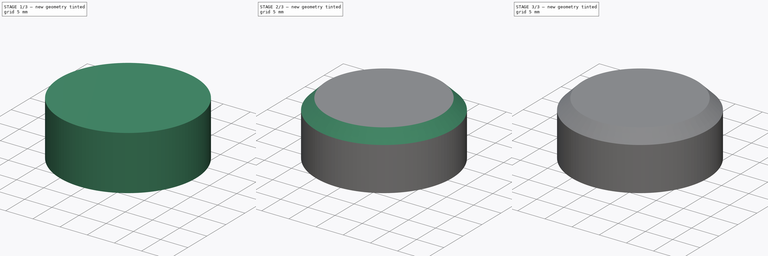
[diagram: build sequence overview — one tinted view per stage of 3, left to right]
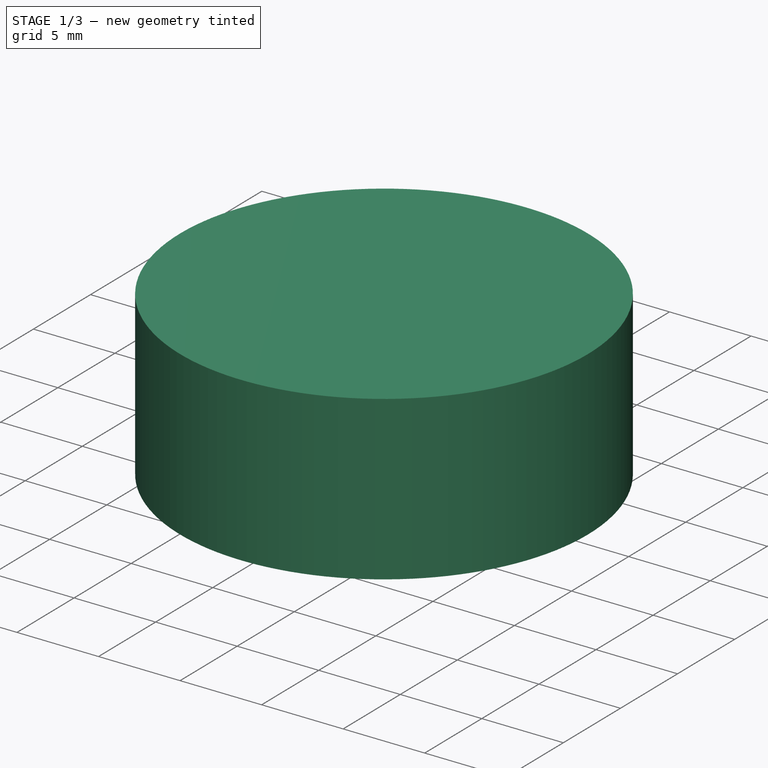
[diagram: stage 1 of 3 — iso view after this stage's code; geometry added in this stage tinted green]
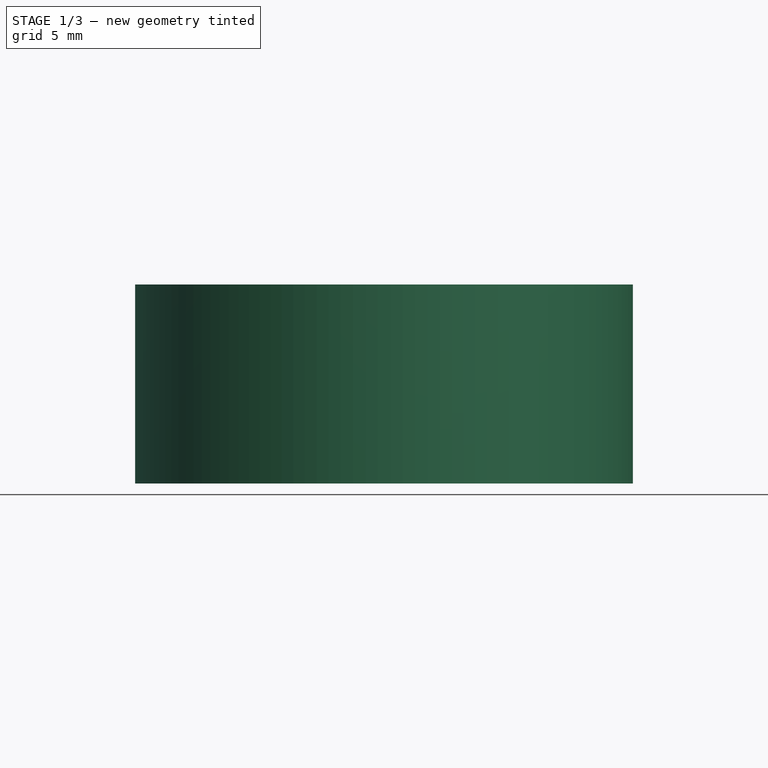
[diagram: stage 1 of 3 — front view after this stage's code; geometry added in this stage tinted green]
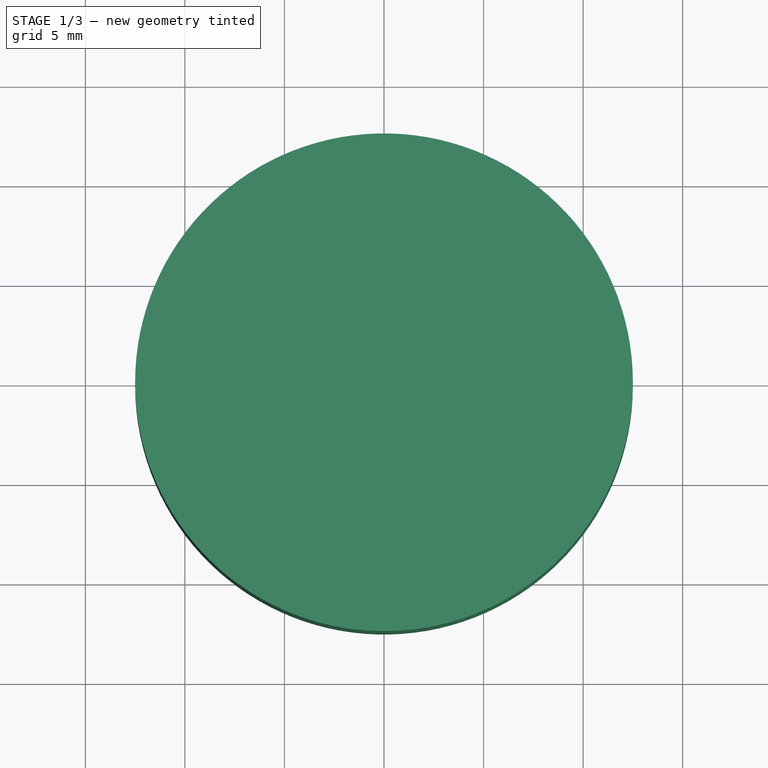
[diagram: stage 1 of 3 — top view after this stage's code; geometry added in this stage tinted green]
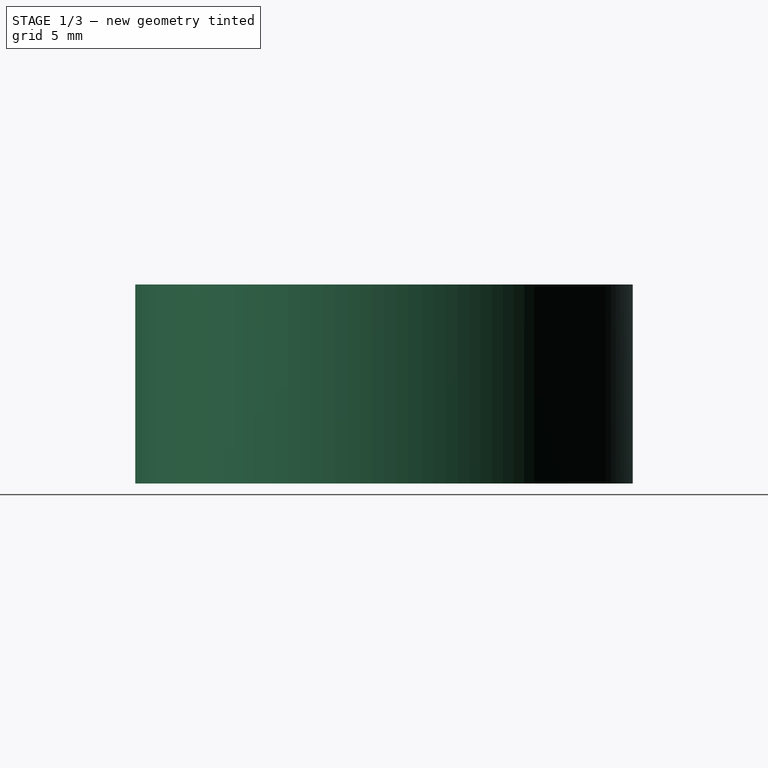
[diagram: stage 1 of 3 — right view after this stage's code; geometry added in this stage tinted green]
FCSTD DOCUMENT  (FreeCAD 1.0R39285 (Git))
Label: knob
License: All rights reserved
LicenseURL: https://en.wikipedia.org/wiki/All_rights_reserved
objects: Sketcher::SketchObject×3, PartDesign::Pocket×2, PartDesign::Chamfer×2, PartDesign::Pad×1, PartDesign::Body×1
note: 22 computed .brp shape members not serialized (recipe doc carries the construction recipe); baked Part::Feature solids carry a one-line shape summary decoded from their .brp

FEATURE [Sketcher::SketchObject] Sketch
  ArcFitTolerance = 1e-06
  AttachmentSupport = -> [XY_Plane]
  FullyConstrained = true
  MakeInternals = false
  MapMode = 5
  sketch-geometry (1):
    g0: Circle CenterX=0 CenterY=0 CenterZ=0 NormalX=0 NormalY=0 NormalZ=1 AngleXU=0 Radius=12.5
  constraints (2):
    c: Coincident(g0,g-1)
    c: Diameter(g0) = 25
FEATURE [Sketcher::SketchObject] Sketch001
  ArcFitTolerance = 1e-06
  AttachmentSupport = -> [XY_Plane]
  FullyConstrained = true
  MakeInternals = false
  MapMode = 5
  sketch-geometry (3):
    g0: ArcOfCircle CenterX=0 CenterY=0 CenterZ=0 NormalX=0 NormalY=0 NormalZ=1 AngleXU=0 Radius=3.1 StartAngle=2.67302 EndAngle=6.75176
    g1: LineSegment StartX=-2.76586 StartY=1.4 StartZ=0 EndX=2.76586 EndY=1.4 EndZ=0
    g2: GeomPoint X=0 Y=-3.1 Z=0
  constraints (8):
    c: Coincident(g0,g-1)
    c: Radius(g0) = 3.1
    c: Horizontal(g0,g0)
    c: Coincident(g1,g0)
    c: Coincident(g1,g0)
    c: PointOnObject(g2,g0)
    c: PointOnObject(g2,g-2)
    c: Distance(g2,g1) = 4.5
FEATURE [PartDesign::Pad] Pad
  Direction = (0,0,1)
  Length = 10
  Length2 = 10
  Profile = -> Sketch
  ReferenceAxis = -> Sketch [N_Axis]
  Refine = true
  Suppressed = false
  Type = 0
FEATURE [PartDesign::Pocket] Pocket
  BaseFeature = -> Pad
  Direction = (0,0,-1)
  Length = 8
  Length2 = 5
  Profile = -> Sketch001
  ReferenceAxis = -> Sketch001 [N_Axis]
  Refine = true
  Reversed = true
  Suppressed = false
  Type = 0
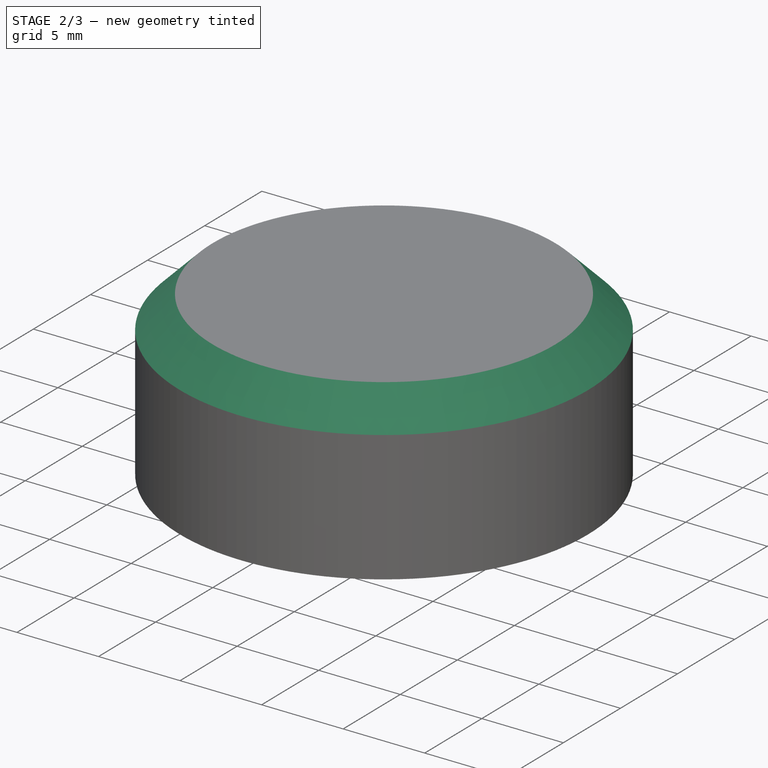
[diagram: stage 2 of 3 — iso view after this stage's code; geometry added in this stage tinted green]
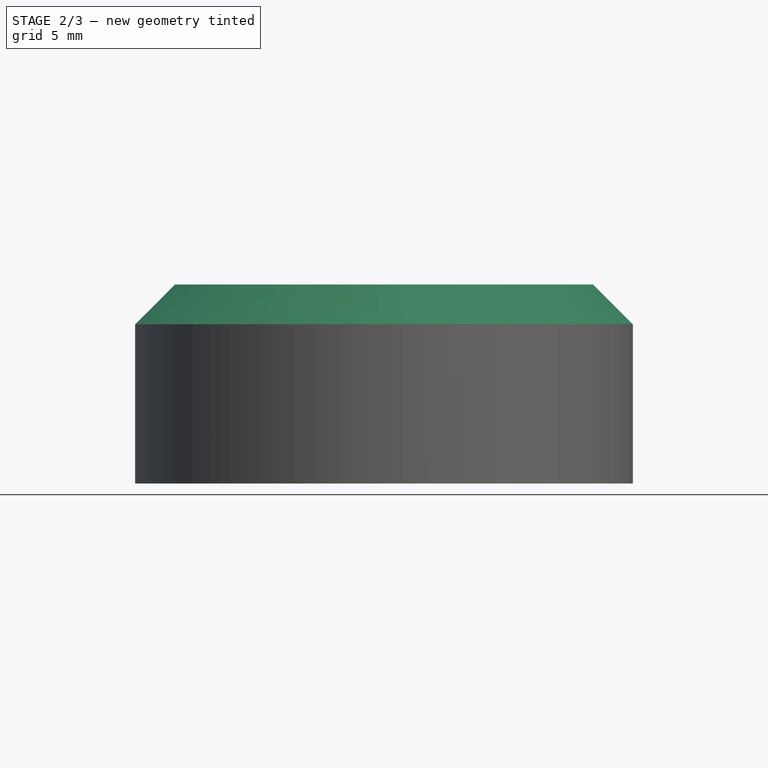
[diagram: stage 2 of 3 — front view after this stage's code; geometry added in this stage tinted green]
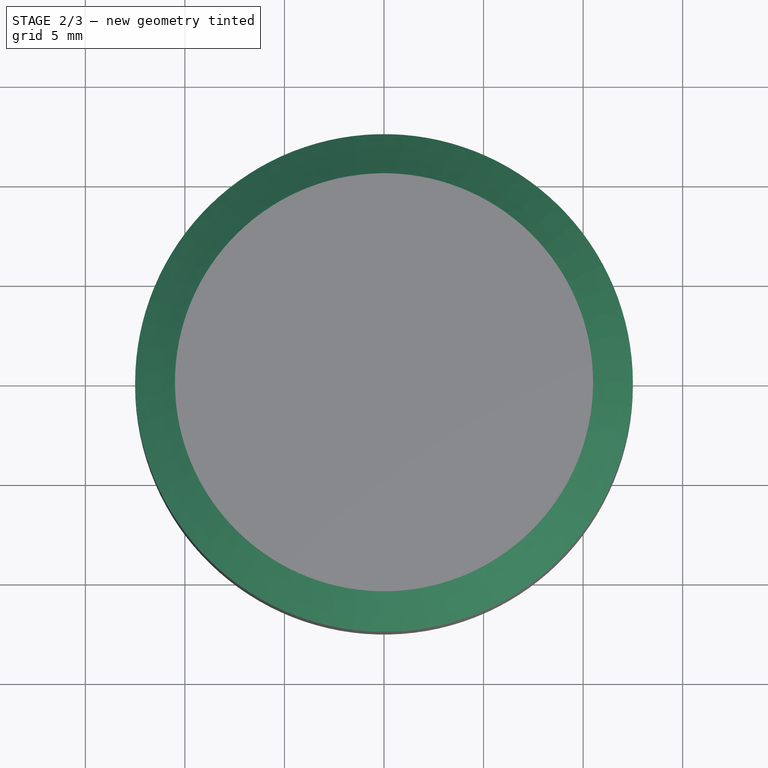
[diagram: stage 2 of 3 — top view after this stage's code; geometry added in this stage tinted green]
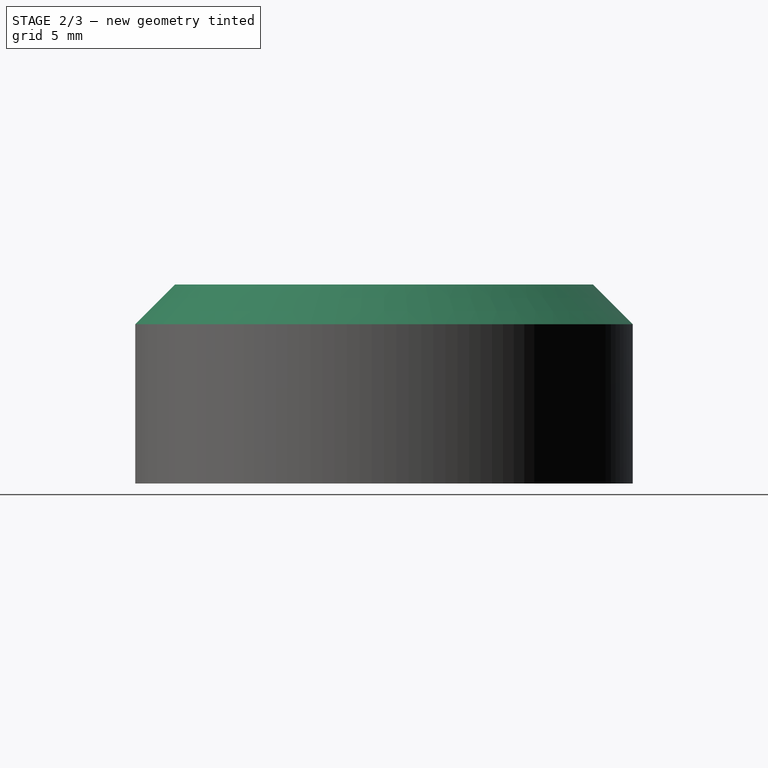
[diagram: stage 2 of 3 — right view after this stage's code; geometry added in this stage tinted green]
FEATURE [PartDesign::Chamfer] Chamfer
  Angle = 45
  Base = -> Pocket [Edge3]
  BaseFeature = -> Pocket
  ChamferType = 0
  FlipDirection = false
  Refine = true
  Size = 2
  Size2 = 1
  SupportTransform = false
  Suppressed = false
  UseAllEdges = false
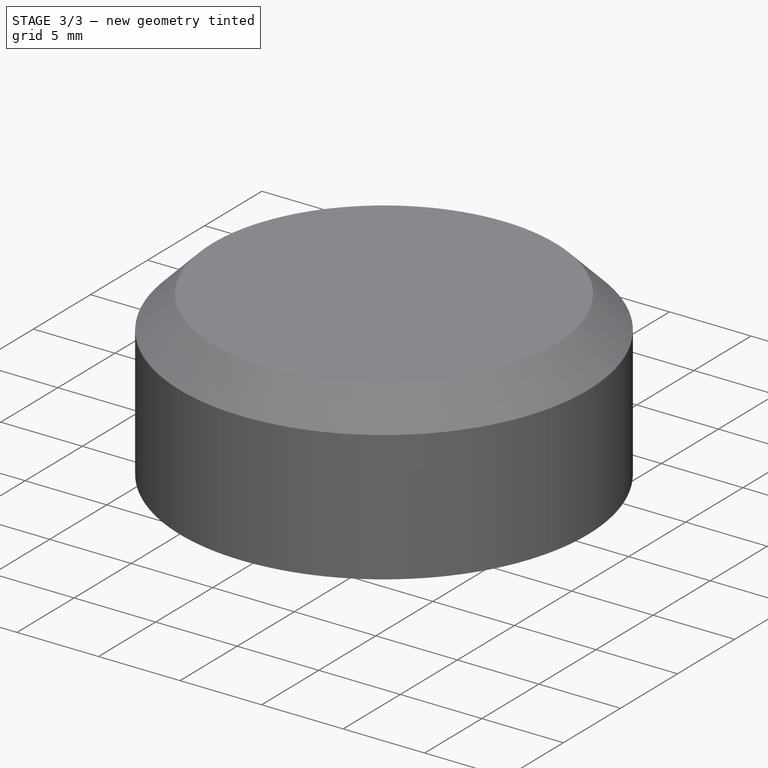
[diagram: stage 3 of 3 — iso view after this stage's code; geometry added in this stage tinted green]
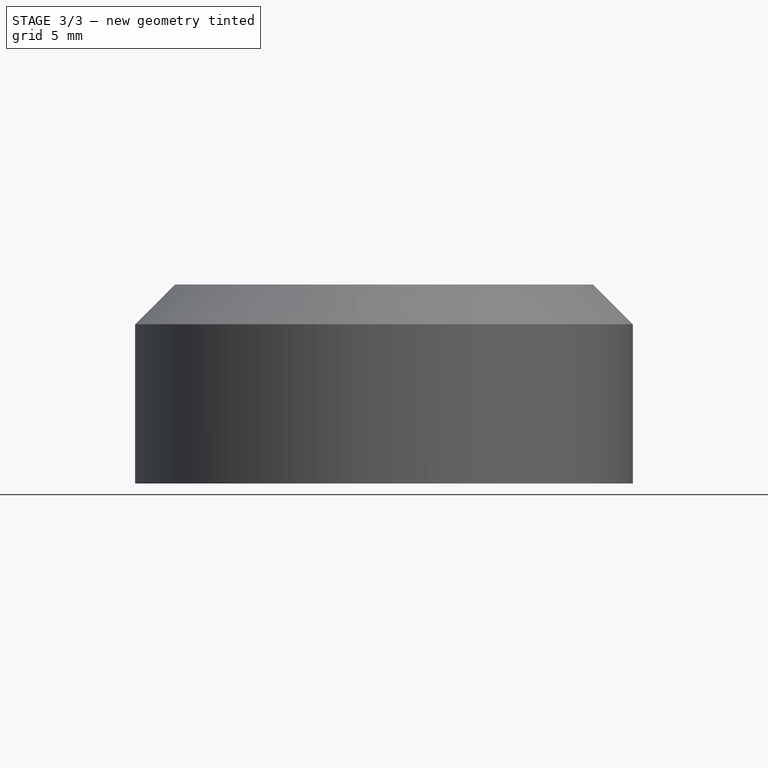
[diagram: stage 3 of 3 — front view after this stage's code; geometry added in this stage tinted green]
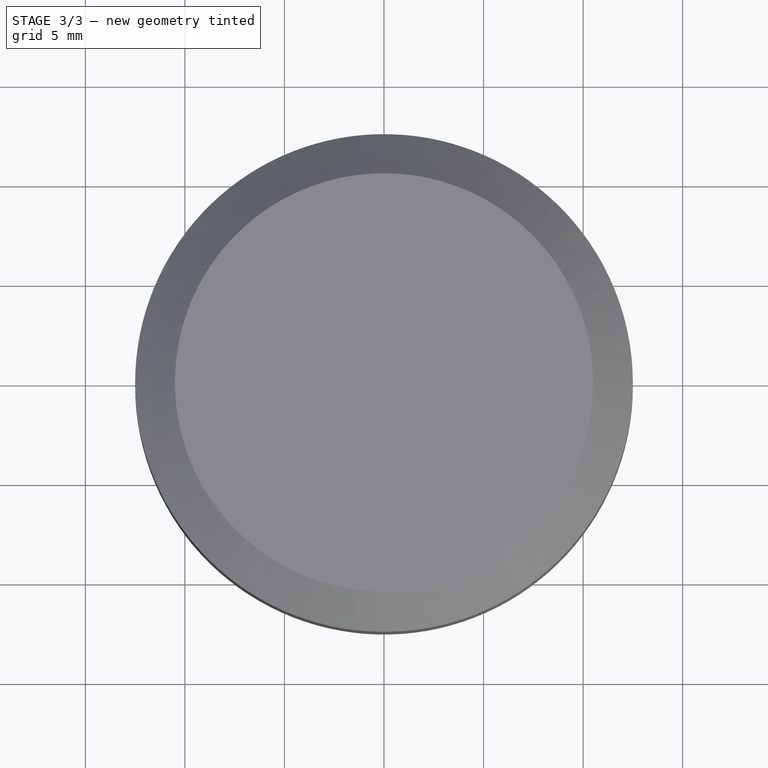
[diagram: stage 3 of 3 — top view after this stage's code; geometry added in this stage tinted green]
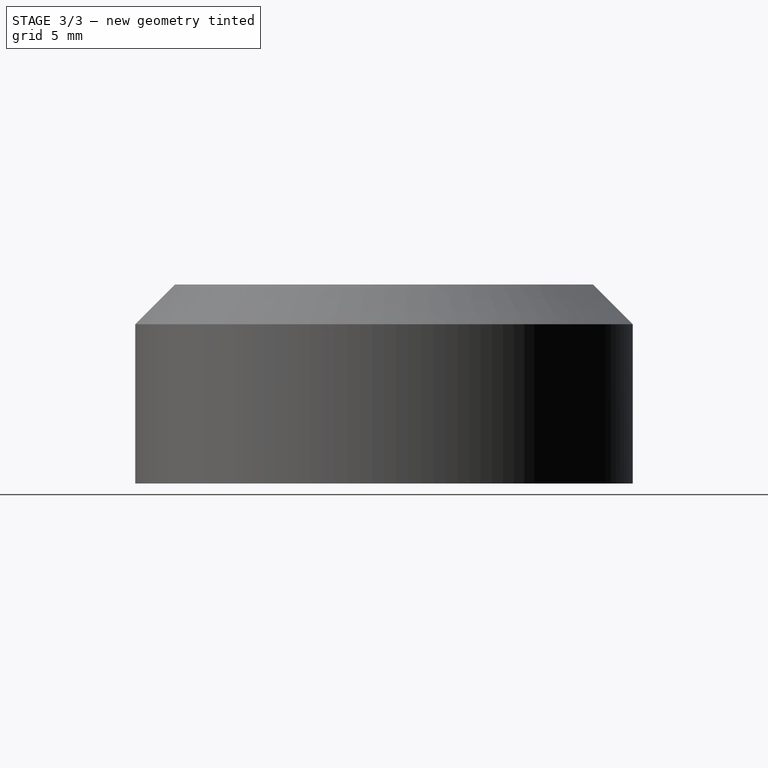
[diagram: stage 3 of 3 — right view after this stage's code; geometry added in this stage tinted green]
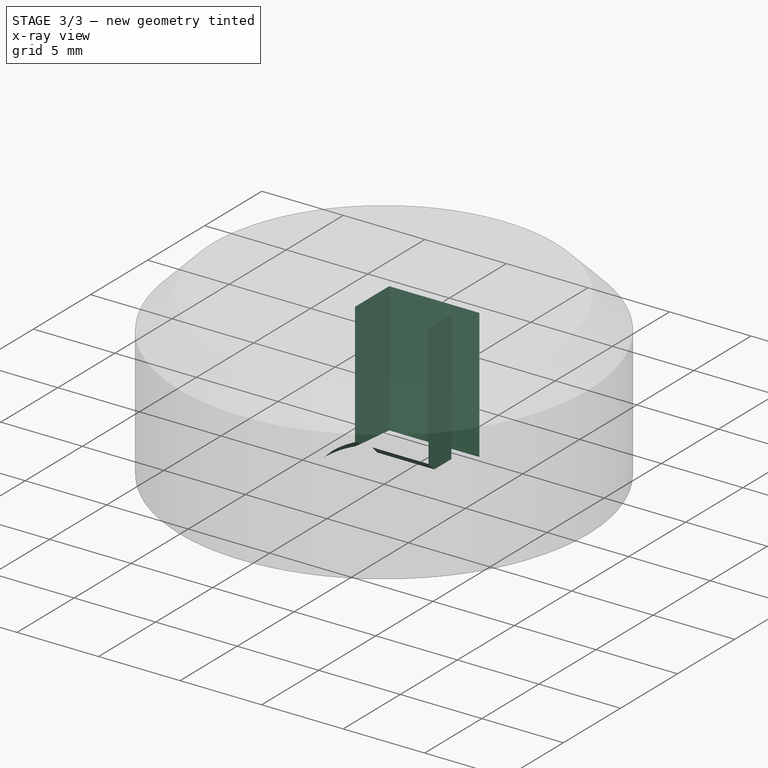
[diagram: stage 3 of 3 — x-ray composite at the iso view; earlier geometry ghosted, this stage's added geometry solid]
FEATURE [Sketcher::SketchObject] Sketch002
  ArcFitTolerance = 1e-06
  AttachmentSupport = -> [XY_Plane]
  FullyConstrained = true
  MakeInternals = false
  MapMode = 5
  expr: Constraints[28] = 4.5 - 3.1
  sketch-geometry (14):
    g0: LineSegment StartX=1.75 StartY=1.4 StartZ=0 EndX=1.75 EndY=3.4 EndZ=0
    g1: LineSegment StartX=1.75 StartY=3.4 StartZ=0 EndX=-1.75 EndY=3.4 EndZ=0
    g2: LineSegment StartX=-1.75 StartY=3.4 StartZ=0 EndX=-1.75 EndY=1.4 EndZ=0
    g3: LineSegment [constr] StartX=-1.75 StartY=1.4 StartZ=0 EndX=1.75 EndY=1.4 EndZ=0
    g4: GeomPoint [constr] X=0 Y=2.4 Z=0
    g5: LineSegment StartX=2.76586 StartY=1.4 StartZ=0 EndX=2.76586 EndY=4.4 EndZ=0
    g6: LineSegment StartX=2.76586 StartY=4.4 StartZ=0 EndX=-2.76586 EndY=4.4 EndZ=0
    g7: LineSegment StartX=-2.76586 StartY=4.4 StartZ=0 EndX=-2.76586 EndY=1.4 EndZ=0
    g8: LineSegment [constr] StartX=-2.76586 StartY=1.4 StartZ=0 EndX=2.76586 EndY=1.4 EndZ=0
    g9: GeomPoint [constr] X=0 Y=2.9 Z=0
    g10: LineSegment StartX=-1.75 StartY=1.4 StartZ=0 EndX=-2.76586 EndY=1.4 EndZ=0
    g11: LineSegment StartX=1.75 StartY=1.4 StartZ=0 EndX=2.76586 EndY=1.4 EndZ=0
    g12: GeomPoint X=0 Y=0 Z=0
    g13: LineSegment [constr] StartX=0 StartY=0 StartZ=0 EndX=-2.76586 EndY=1.4 EndZ=0
  constraints (33):
    c: Coincident(g0,g1)
    c: Coincident(g1,g2)
    c: Coincident(g2,g3)
    c: Coincident(g3,g0)
    c: Vertical(g0)
    c: Vertical(g2)
    c: Horizontal(g1)
    c: Horizontal(g3)
    c: Symmetric(g2,g0,g4)
    c: PointOnObject(g4,g-2)
    c: Coincident(g5,g6)
    c: Coincident(g6,g7)
    c: Coincident(g7,g8)
    c: Coincident(g8,g5)
    c: Vertical(g5)
    c: Vertical(g7)
    c: Horizontal(g6)
    c: Horizontal(g8)
    c: Symmetric(g7,g5,g9)
    c: PointOnObject(g9,g-2)
    c: PointOnObject(g2,g8)
    c: Coincident(g10,g2)
    c: Coincident(g10,g7)
    c: Coincident(g11,g0)
    c: Coincident(g11,g5)
    c: DistanceY(g2,g2) = 2
    c: DistanceX(g1,g1) = 3.5
    c: Coincident(g12,g-1)
    c: Distance(g3,g-1) = 1.4
    c: Coincident(g13,g12)
    c: Coincident(g13,g7)
    c: Distance(g13,g13) = 3.1
    c: DistanceY(g5,g5) = 3
FEATURE [PartDesign::Pocket] Pocket001
  BaseFeature = -> Chamfer
  Direction = (0,0,-1)
  Length = 8
  Length2 = 5
  Profile = -> Sketch002
  ReferenceAxis = -> Sketch002 [N_Axis]
  Refine = true
  Reversed = true
  Suppressed = false
  Type = 0
FEATURE [PartDesign::Chamfer] Chamfer001
  Angle = 45
  Base = -> Pocket001 [Edge6,Edge22]
  BaseFeature = -> Pocket001
  ChamferType = 0
  FlipDirection = false
  Refine = true
  Size = 0.5
  Size2 = 1
  SupportTransform = false
  Suppressed = false
  UseAllEdges = false
FEATURE [PartDesign::Body] Body
  AllowCompound = false
  Group = -> [Sketch,Sketch001,Pad,Pocket,Chamfer,Sketch002,Pocket001,Chamfer001]
  Origin = -> Origin
  Tip = -> Chamfer001
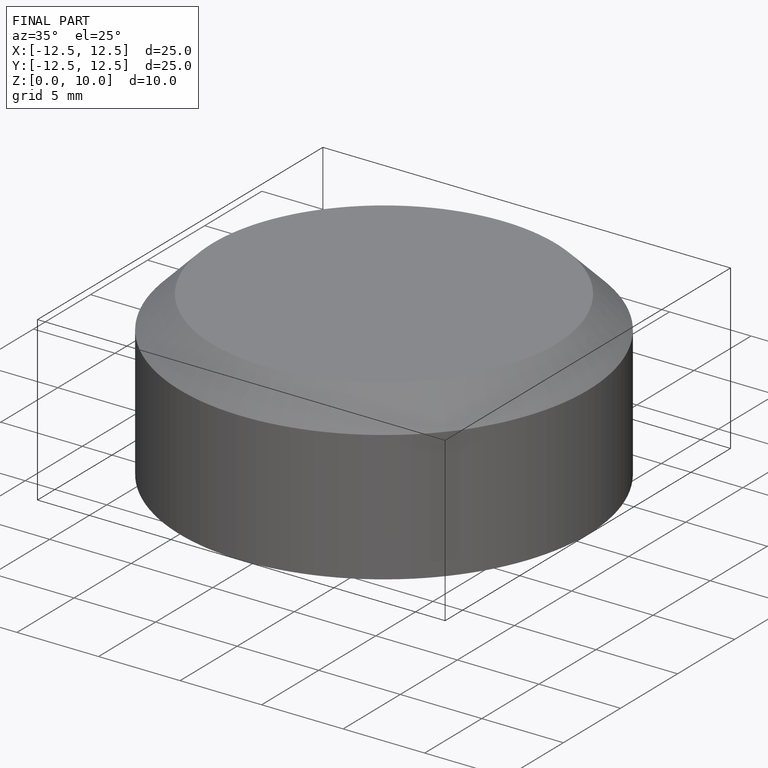
[diagram: finished part — iso view with bounding-box wireframe]
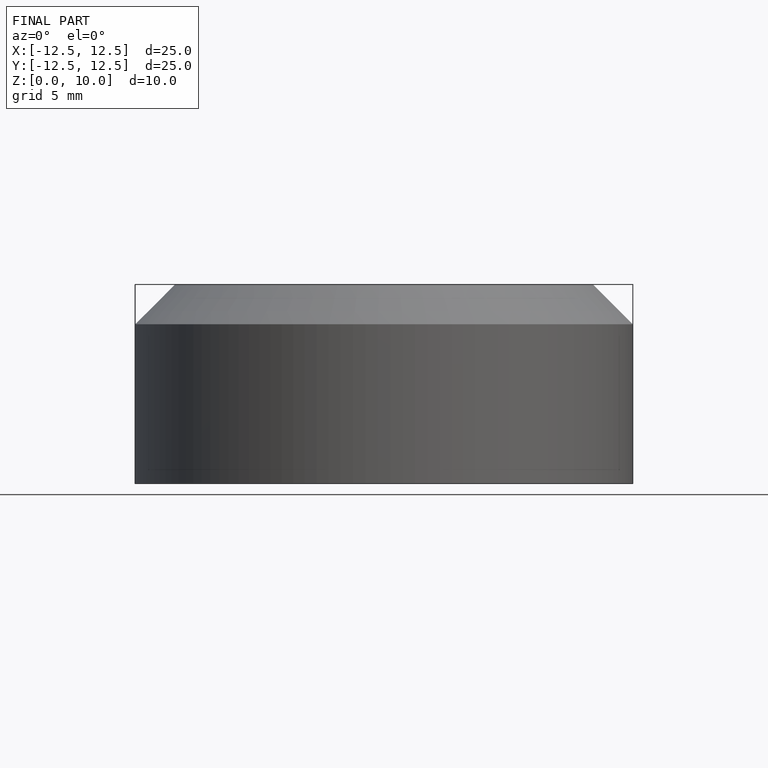
[diagram: finished part — front view with bounding-box wireframe]
